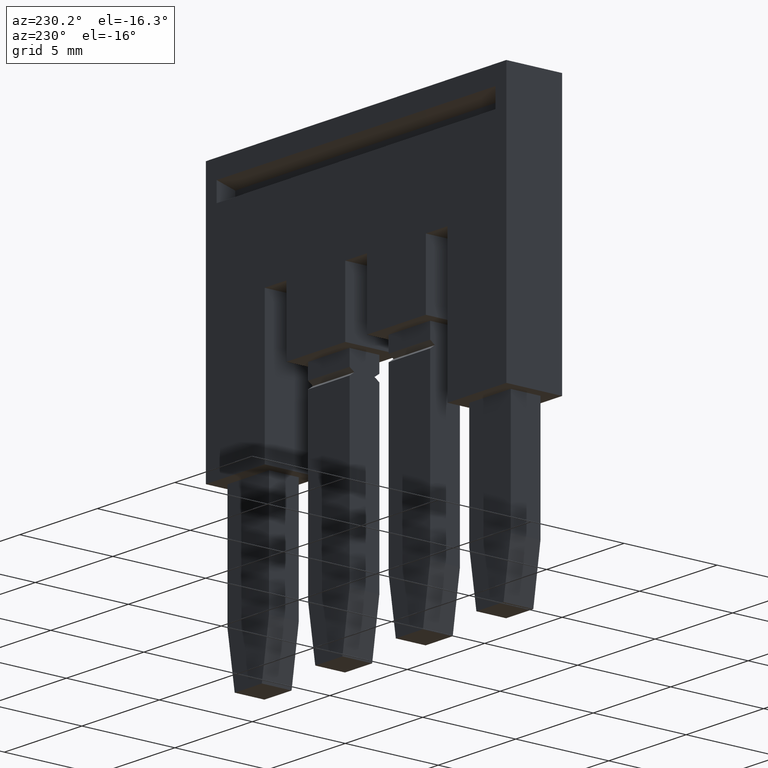
[diagram: clean part render]
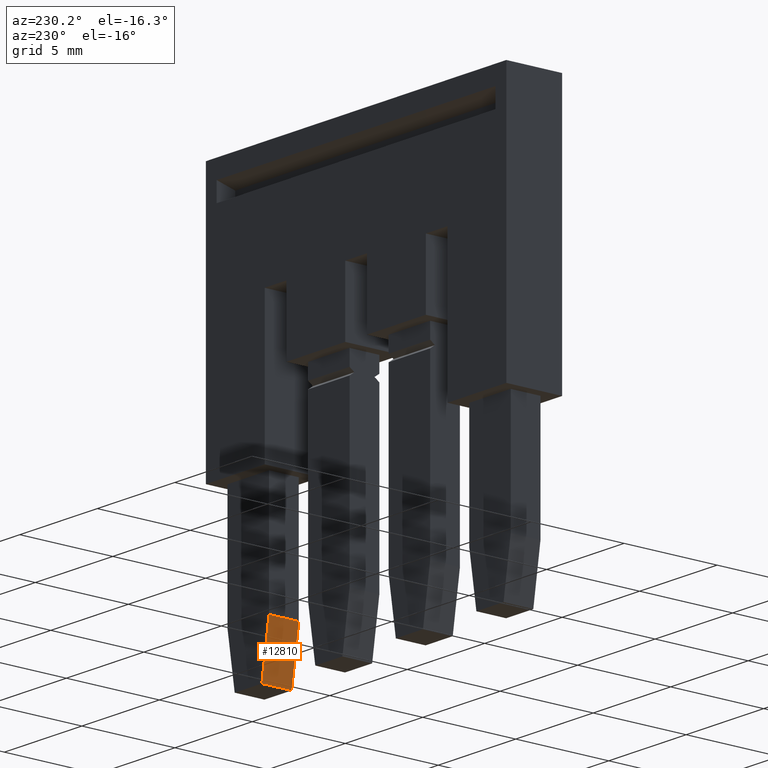
[diagram: same view with one face highlighted and labeled with its STEP entity id]
A machine part, auxiliary view. The second image highlights one B-rep face of the part: STEP entity #12810.
In plain terms, the highlighted planar face has unit normal (0.9872, -0, 0.1594).
Its self-contained STEP definition (entity closure, byte-faithful):
#10760=CARTESIAN_POINT('',(3.30716722169511,-29.9807420624732,
42.1999999990348));
#10770=VERTEX_POINT('',#10760);
#10800=CARTESIAN_POINT('',(3.30716722169511,-13.005123999997,
44.9404020769722));
#10810=DIRECTION('',(1.95170029616573E-17,-0.987219178105449,
-0.159368423411924));
#10820=VECTOR('',#10810,1.);
#10830=LINE('',#10800,#10820);
#10840=CARTESIAN_POINT('',(3.30716722169511,-32.8500000022934,
41.7368109480393));
#10850=VERTEX_POINT('',#10840);
#10860=EDGE_CURVE('',#10770,#10850,#10830,.T.);
#11310=CARTESIAN_POINT('',(4.90716722169511,-29.9807420624732,
42.1999999990348));
#11320=VERTEX_POINT('',#11310);
#11350=CARTESIAN_POINT('',(3.30716722169511,-29.9807420624732,
42.1999999990348));
#11360=DIRECTION('',(1.,0.,1.22464679914735E-16));
#11370=VECTOR('',#11360,1.);
#11380=LINE('',#11350,#11370);
#11390=EDGE_CURVE('',#10770,#11320,#11380,.T.);
#11760=CARTESIAN_POINT('',(4.90716722169511,-32.8500000022934,
41.7368109480393));
#11770=VERTEX_POINT('',#11760);
#11800=CARTESIAN_POINT('',(4.90716722169511,-13.005123999997,
44.9404020769722));
#11810=DIRECTION('',(1.95170029616573E-17,-0.987219178105449,
-0.159368423411924));
#11820=VECTOR('',#11810,1.);
#11830=LINE('',#11800,#11820);
#11840=EDGE_CURVE('',#11320,#11770,#11830,.T.);
#12520=CARTESIAN_POINT('',(3.30716722169511,-32.8500000022934,
41.7368109480393));
#12530=DIRECTION('',(1.,0.,1.22464679914735E-16));
#12540=VECTOR('',#12530,1.);
#12550=LINE('',#12520,#12540);
#12560=EDGE_CURVE('',#10850,#11770,#12550,.T.);
#12700=CARTESIAN_POINT('',(3.30716722169511,-29.9807420624732,
42.1999999990348));
#12710=DIRECTION('',(1.20899480652372E-16,0.159368423411924,
-0.987219178105449));
#12720=DIRECTION('',(-1.95170029616573E-17,0.987219178105449,
0.159368423411924));
#12730=AXIS2_PLACEMENT_3D('',#12700,#12710,#12720);
#12740=PLANE('',#12730);
#12750=ORIENTED_EDGE('',*,*,#10860,.T.);
#12760=ORIENTED_EDGE('',*,*,#11390,.F.);
#12770=ORIENTED_EDGE('',*,*,#11840,.F.);
#12780=ORIENTED_EDGE('',*,*,#12560,.T.);
#12790=EDGE_LOOP('',(#12780,#12770,#12760,#12750));
#12800=FACE_OUTER_BOUND('',#12790,.T.);
#12810=ADVANCED_FACE('',(#12800),#12740,.F.);